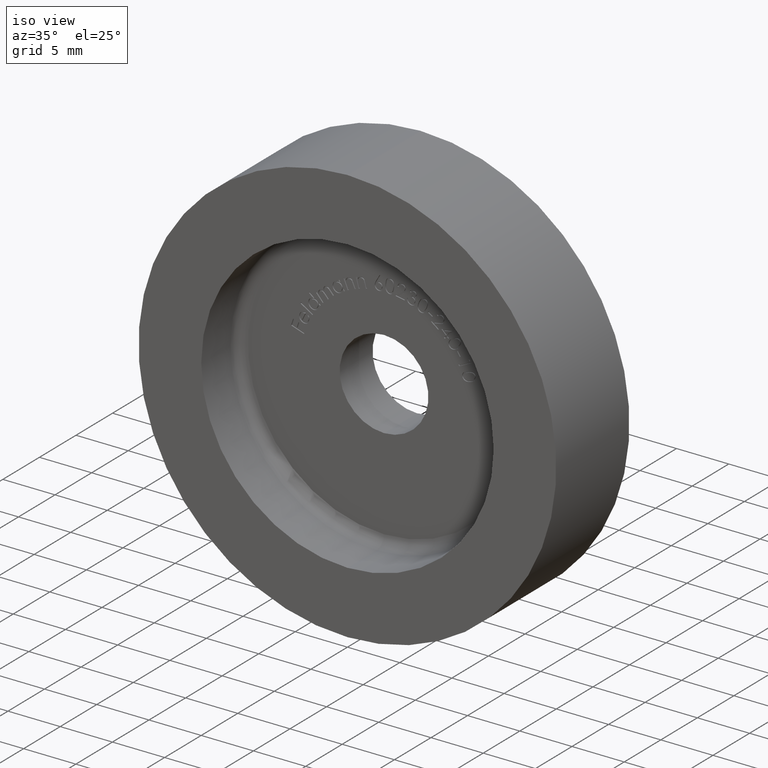
[diagram: clean part render]
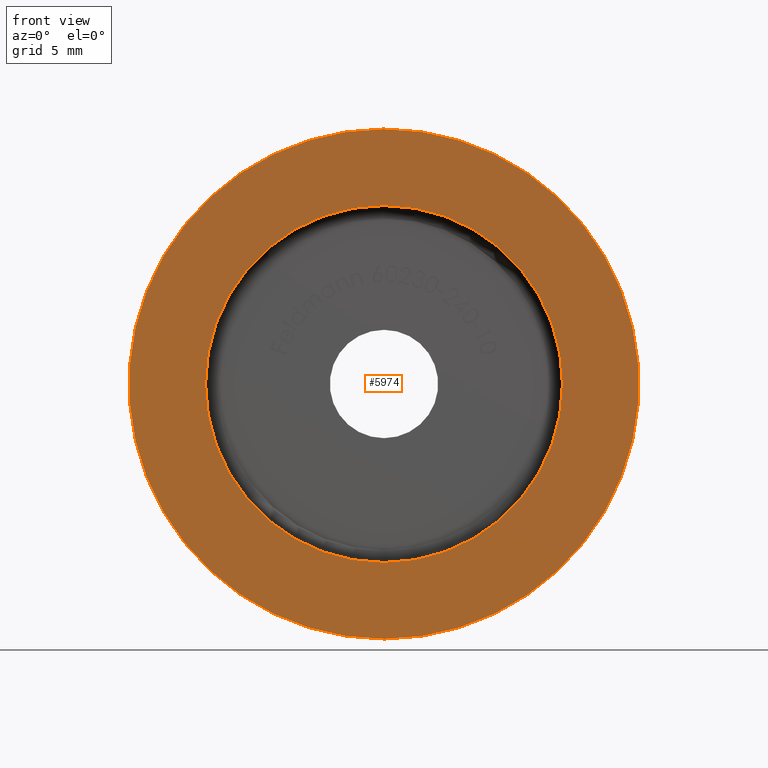
[diagram: tour spotlight — one face highlighted and labeled with its STEP entity id]
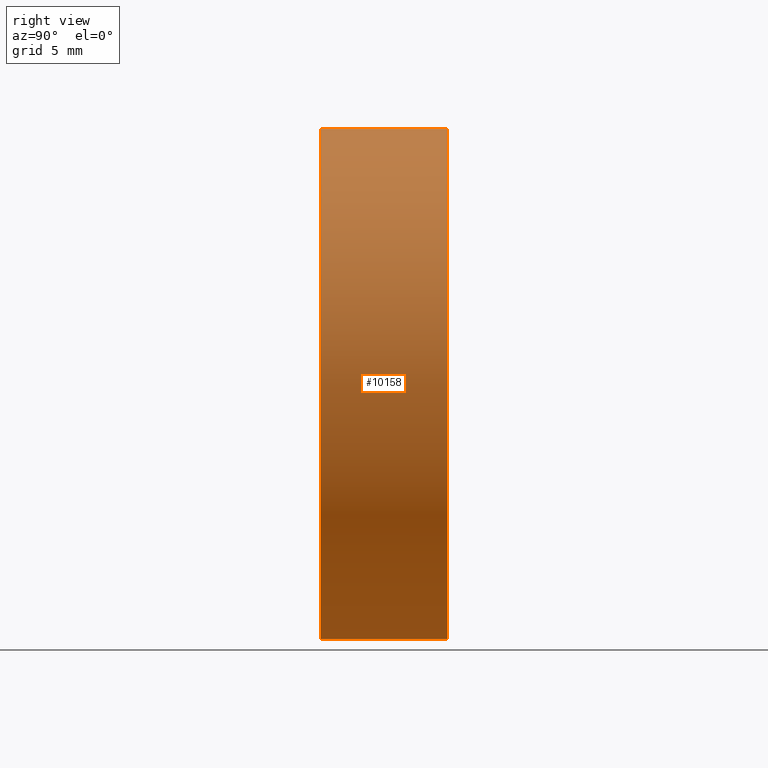
[diagram: tour spotlight — one face highlighted and labeled with its STEP entity id]
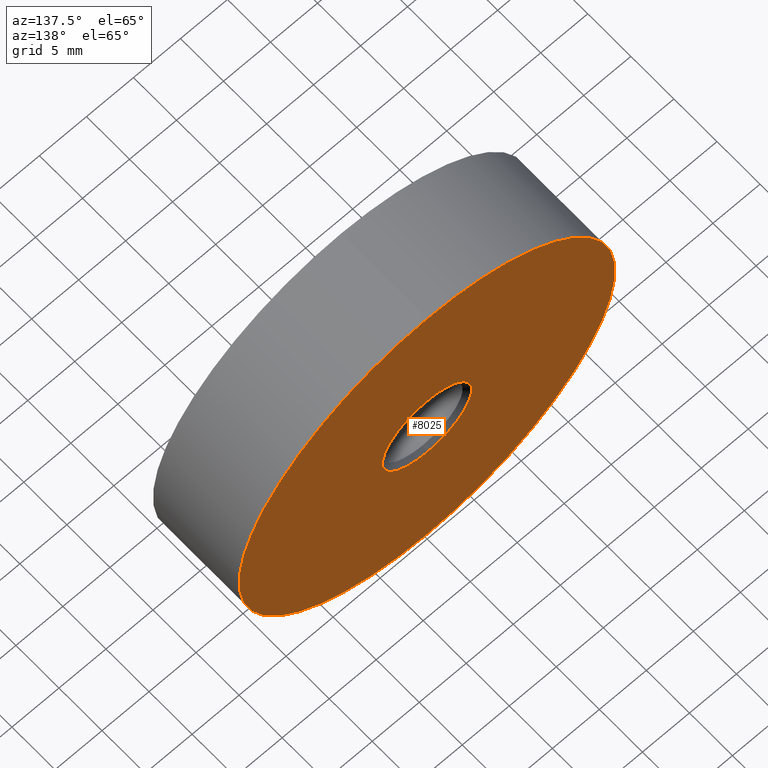
[diagram: tour spotlight — one face highlighted and labeled with its STEP entity id]
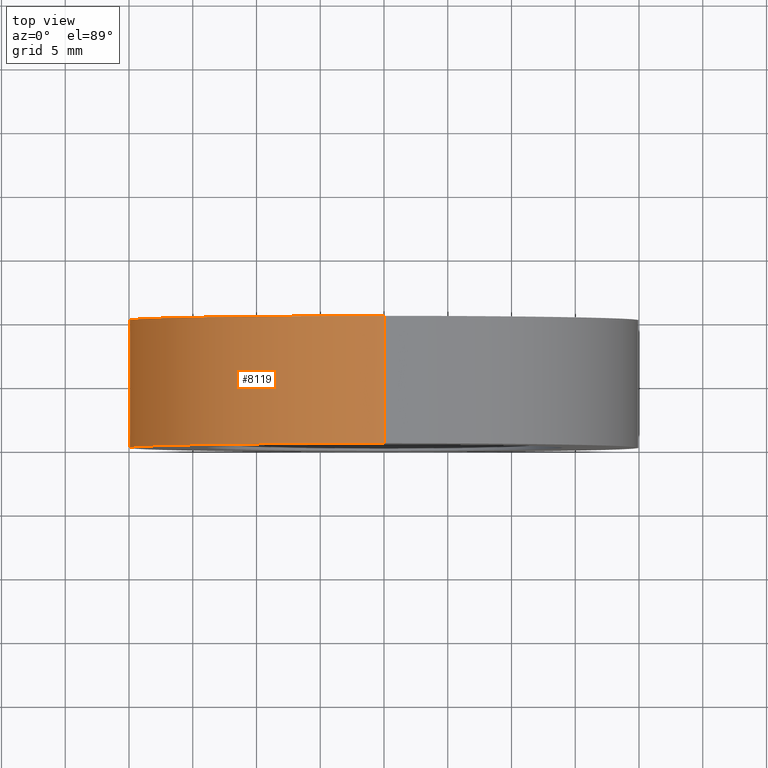
[diagram: tour spotlight — one face highlighted and labeled with its STEP entity id]
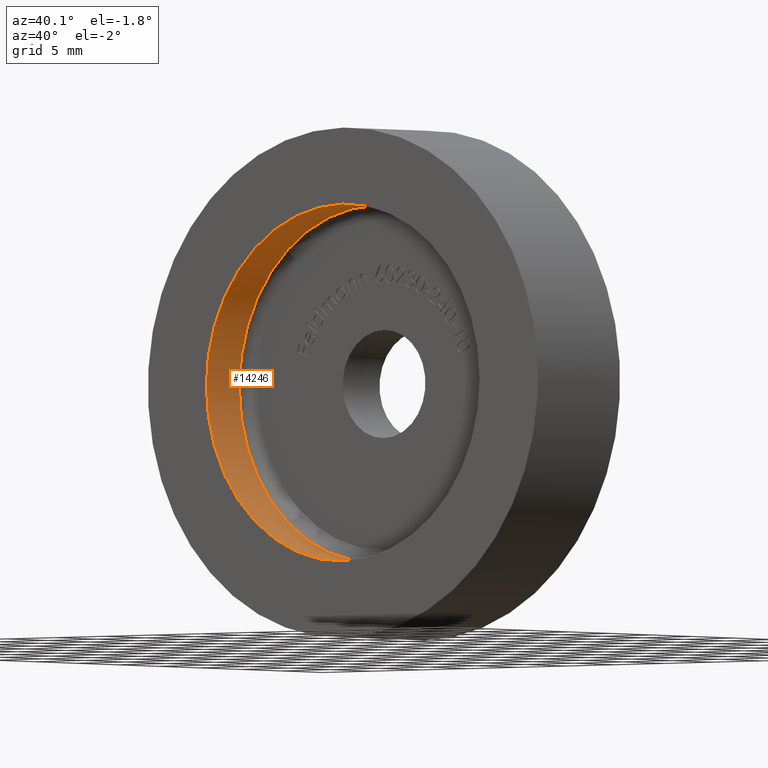
[diagram: tour spotlight — one face highlighted and labeled with its STEP entity id]
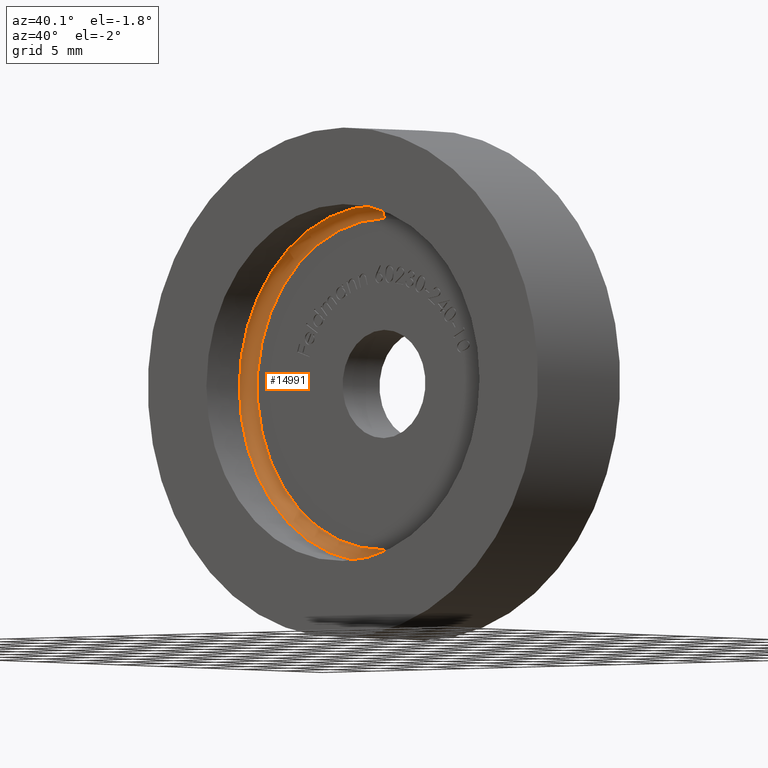
[diagram: tour spotlight — one face highlighted and labeled with its STEP entity id]
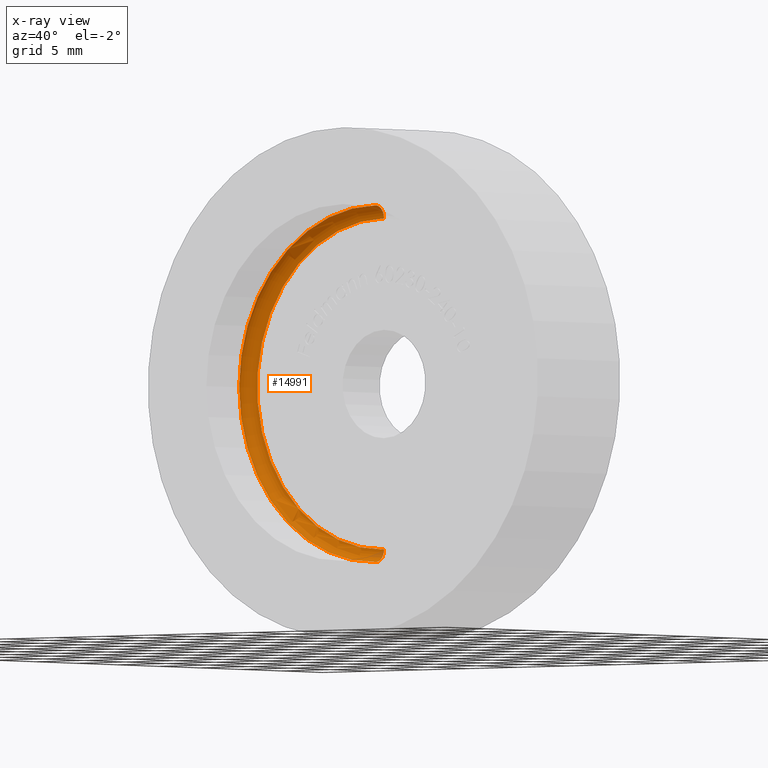
[diagram: x-ray of the same camera — body ghosted, this tour face saturated]
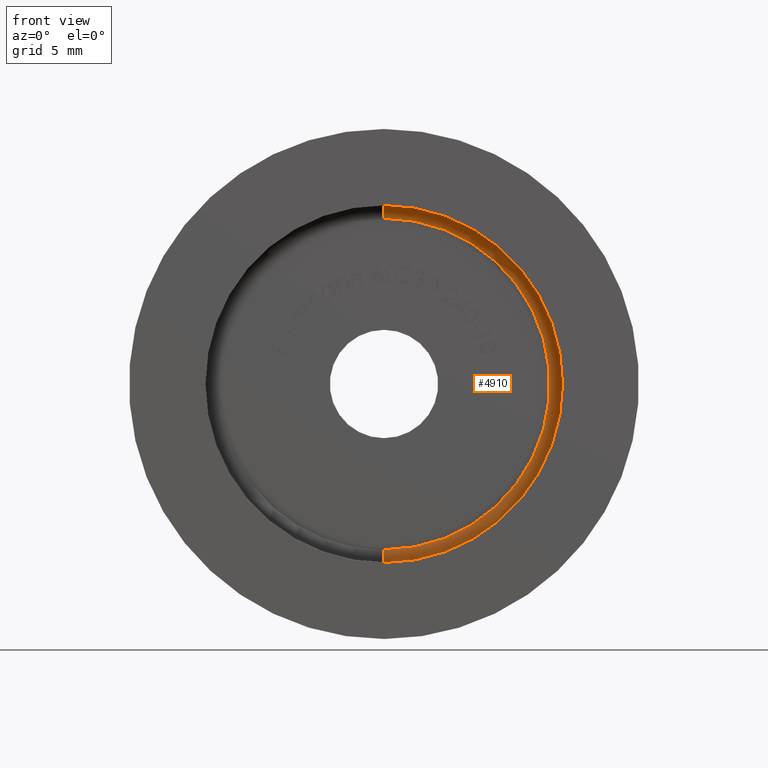
[diagram: tour spotlight — one face highlighted and labeled with its STEP entity id]
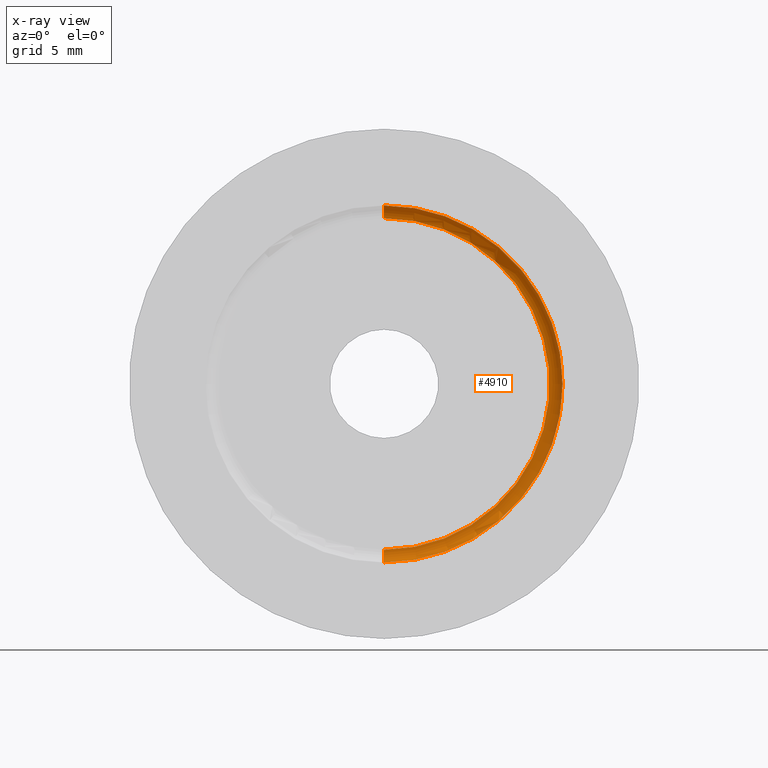
[diagram: x-ray of the same camera — body ghosted, this tour face saturated]
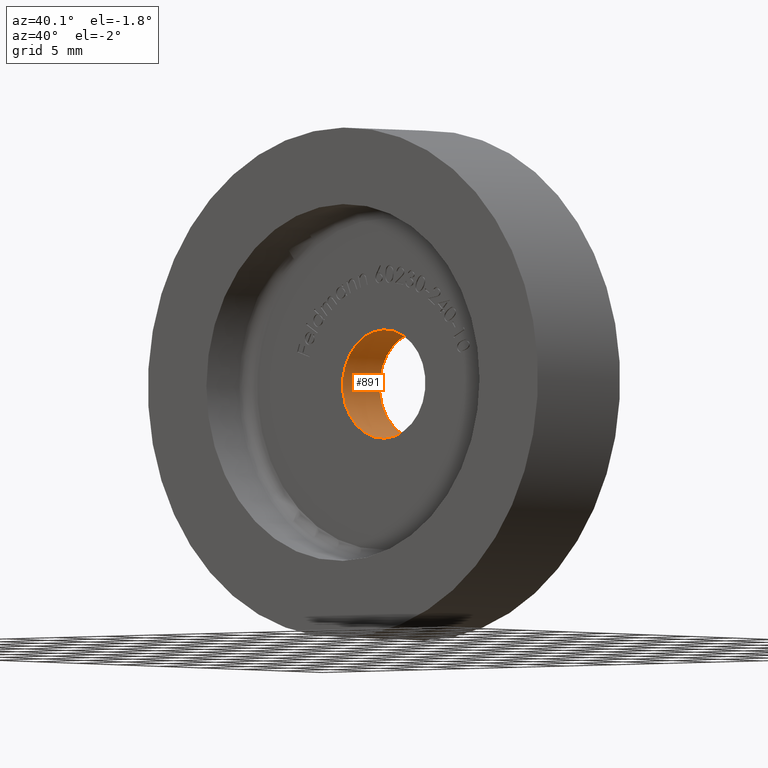
[diagram: tour spotlight — one face highlighted and labeled with its STEP entity id]
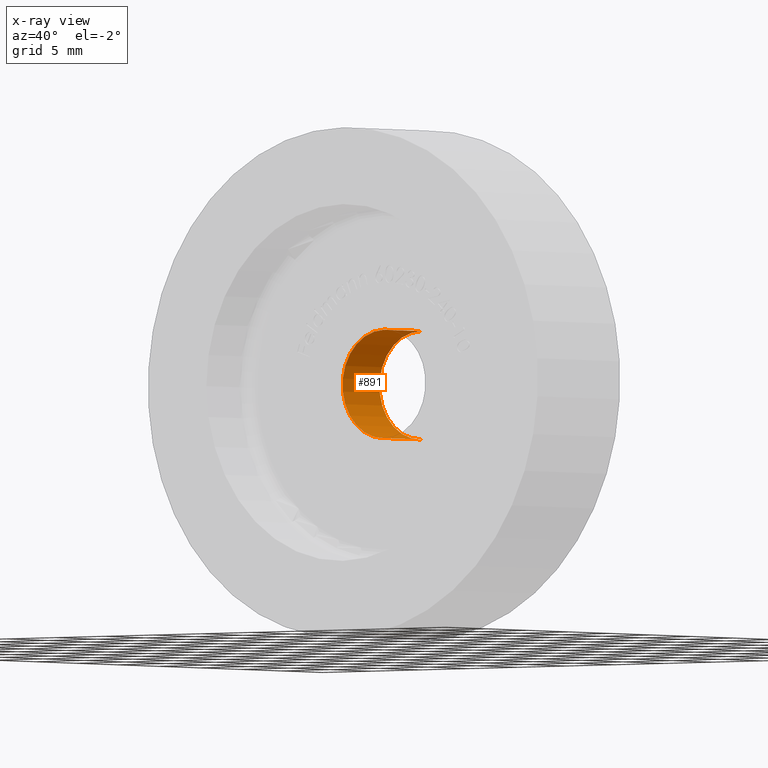
[diagram: x-ray of the same camera — body ghosted, this tour face saturated]
A machine part: a face-by-face anatomy tour. The part has 260 B-rep faces; the first image is the clean iso view, then the 8 largest visible faces are spotlighted one at a time (largest first), each with its STEP entity span.

Face 1 — front view, entity #5974. In plain terms, the highlighted planar face has unit normal (0, -1, 0).
Definition (entity closure, byte-faithful):
#480 = CARTESIAN_POINT ( 'NONE',  ( 0.000000000000000000, -1.734723475976807094E-15, 0.000000000000000000 ) ) ;
#525 = DIRECTION ( 'NONE',  ( 0.000000000000000000, 0.000000000000000000, 1.000000000000000000 ) ) ;
#1818 = CARTESIAN_POINT ( 'NONE',  ( 0.000000000000000000, 0.000000000000000000, -14.00000000000000000 ) ) ;
#2005 = VERTEX_POINT ( 'NONE', #15017 ) ;
#2177 = AXIS2_PLACEMENT_3D ( 'NONE', #3111, #12286, #14809 ) ;
#2670 = ORIENTED_EDGE ( 'NONE', *, *, #3071, .F. ) ;
#2947 = CIRCLE ( 'NONE', #8390, 14.00000000000000000 ) ;
#2968 = EDGE_LOOP ( 'NONE', ( #5273, #4473 ) ) ;
#3037 = CARTESIAN_POINT ( 'NONE',  ( 0.000000000000000000, 0.000000000000000000, 0.000000000000000000 ) ) ;
#3071 = EDGE_CURVE ( 'NONE', #13993, #6652, #12283, .T. ) ;
#3111 = CARTESIAN_POINT ( 'NONE',  ( -8.499999999999998224, -1.207637078764412262E-15, 0.000000000000000000 ) ) ;
#3781 = CARTESIAN_POINT ( 'NONE',  ( 0.000000000000000000, -1.734723475976807094E-15, 0.000000000000000000 ) ) ;
#3871 = DIRECTION ( 'NONE',  ( 0.000000000000000000, 0.000000000000000000, 1.000000000000000000 ) ) ;
#4065 = CARTESIAN_POINT ( 'NONE',  ( 1.714505518806294638E-15, 0.000000000000000000, 14.00000000000000000 ) ) ;
#4473 = ORIENTED_EDGE ( 'NONE', *, *, #10258, .F. ) ;
#4917 = EDGE_CURVE ( 'NONE', #6652, #13993, #2947, .T. ) ;
#4972 = FACE_OUTER_BOUND ( 'NONE', #2968, .T. ) ;
#5116 = DIRECTION ( 'NONE',  ( 0.000000000000000000, 0.000000000000000000, -1.000000000000000000 ) ) ;
#5273 = ORIENTED_EDGE ( 'NONE', *, *, #11755, .F. ) ;
#5974 = ADVANCED_FACE ( 'NONE', ( #10058, #4972 ), #13432, .T. ) ;
#6652 = VERTEX_POINT ( 'NONE', #4065 ) ;
#8203 = ORIENTED_EDGE ( 'NONE', *, *, #4917, .F. ) ;
#8365 = AXIS2_PLACEMENT_3D ( 'NONE', #3781, #9720, #3871 ) ;
#8390 = AXIS2_PLACEMENT_3D ( 'NONE', #3037, #12221, #12375 ) ;
#9203 = VERTEX_POINT ( 'NONE', #13954 ) ;
#9541 = AXIS2_PLACEMENT_3D ( 'NONE', #13219, #14385, #5116 ) ;
#9622 = AXIS2_PLACEMENT_3D ( 'NONE', #480, #9844, #525 ) ;
#9661 = CIRCLE ( 'NONE', #8365, 20.00000000000000000 ) ;
#9720 = DIRECTION ( 'NONE',  ( -0.000000000000000000, 1.000000000000000000, -0.000000000000000000 ) ) ;
#9844 = DIRECTION ( 'NONE',  ( -0.000000000000000000, 1.000000000000000000, -0.000000000000000000 ) ) ;
#10058 = FACE_BOUND ( 'NONE', #13573, .T. ) ;
#10258 = EDGE_CURVE ( 'NONE', #9203, #2005, #13149, .T. ) ;
#11755 = EDGE_CURVE ( 'NONE', #2005, #9203, #9661, .T. ) ;
#12221 = DIRECTION ( 'NONE',  ( 0.000000000000000000, -1.000000000000000000, 0.000000000000000000 ) ) ;
#12283 = CIRCLE ( 'NONE', #9541, 14.00000000000000000 ) ;
#12286 = DIRECTION ( 'NONE',  ( 0.000000000000000000, -1.000000000000000000, 0.000000000000000000 ) ) ;
#12375 = DIRECTION ( 'NONE',  ( 0.000000000000000000, 0.000000000000000000, -1.000000000000000000 ) ) ;
#13149 = CIRCLE ( 'NONE', #9622, 20.00000000000000000 ) ;
#13219 = CARTESIAN_POINT ( 'NONE',  ( 0.000000000000000000, 0.000000000000000000, 0.000000000000000000 ) ) ;
#13432 = PLANE ( 'NONE',  #2177 ) ;
#13573 = EDGE_LOOP ( 'NONE', ( #2670, #8203 ) ) ;
#13954 = CARTESIAN_POINT ( 'NONE',  ( 2.449293598294706513E-15, -1.734723475976807094E-15, -20.00000000000000000 ) ) ;
#13993 = VERTEX_POINT ( 'NONE', #1818 ) ;
#14385 = DIRECTION ( 'NONE',  ( 0.000000000000000000, -1.000000000000000000, 0.000000000000000000 ) ) ;
#14809 = DIRECTION ( 'NONE',  ( 0.000000000000000000, -0.000000000000000000, -1.000000000000000000 ) ) ;
#15017 = CARTESIAN_POINT ( 'NONE',  ( 0.000000000000000000, -1.734723475976807094E-15, 20.00000000000000000 ) ) ;

Face 2 — right view, entity #10158. In plain terms, the highlighted cylindrical surface (partial cylindrical patch) has radius 20 mm, axis along (-0, 1, -0).
Definition (entity closure, byte-faithful):
#14 = DIRECTION ( 'NONE',  ( 0.000000000000000000, 0.000000000000000000, 1.000000000000000000 ) ) ;
#319 = VERTEX_POINT ( 'NONE', #7921 ) ;
#2005 = VERTEX_POINT ( 'NONE', #15017 ) ;
#2459 = AXIS2_PLACEMENT_3D ( 'NONE', #8143, #7014, #14 ) ;
#2605 = EDGE_LOOP ( 'NONE', ( #9218, #12498, #3365, #3950 ) ) ;
#3365 = ORIENTED_EDGE ( 'NONE', *, *, #12206, .F. ) ;
#3781 = CARTESIAN_POINT ( 'NONE',  ( 0.000000000000000000, -1.734723475976807094E-15, 0.000000000000000000 ) ) ;
#3871 = DIRECTION ( 'NONE',  ( 0.000000000000000000, 0.000000000000000000, 1.000000000000000000 ) ) ;
#3950 = ORIENTED_EDGE ( 'NONE', *, *, #13123, .F. ) ;
#4327 = CARTESIAN_POINT ( 'NONE',  ( 2.449293598294706907E-15, 9.999999999999998224, -20.00000000000000355 ) ) ;
#4490 = CARTESIAN_POINT ( 'NONE',  ( 2.449293598294707302E-15, 9.999999999999998224, -20.00000000000000711 ) ) ;
#5840 = CIRCLE ( 'NONE', #11770, 20.00000000000000711 ) ;
#7014 = DIRECTION ( 'NONE',  ( -0.000000000000000000, 1.000000000000000000, -0.000000000000000000 ) ) ;
#7522 = DIRECTION ( 'NONE',  ( -0.000000000000000000, 1.000000000000000000, -0.000000000000000000 ) ) ;
#7921 = CARTESIAN_POINT ( 'NONE',  ( 0.000000000000000000, 9.999999999999998224, 20.00000000000000711 ) ) ;
#8143 = CARTESIAN_POINT ( 'NONE',  ( 0.000000000000000000, 9.999999999999998224, 0.000000000000000000 ) ) ;
#8155 = DIRECTION ( 'NONE',  ( 0.000000000000000000, 0.000000000000000000, 1.000000000000000000 ) ) ;
#8242 = EDGE_CURVE ( 'NONE', #9203, #9645, #14188, .T. ) ;
#8365 = AXIS2_PLACEMENT_3D ( 'NONE', #3781, #9720, #3871 ) ;
#8733 = VECTOR ( 'NONE', #7522, 1000.000000000000000 ) ;
#9203 = VERTEX_POINT ( 'NONE', #13954 ) ;
#9218 = ORIENTED_EDGE ( 'NONE', *, *, #11755, .T. ) ;
#9645 = VERTEX_POINT ( 'NONE', #4490 ) ;
#9661 = CIRCLE ( 'NONE', #8365, 20.00000000000000000 ) ;
#9720 = DIRECTION ( 'NONE',  ( -0.000000000000000000, 1.000000000000000000, -0.000000000000000000 ) ) ;
#9994 = LINE ( 'NONE', #13252, #8733 ) ;
#10158 = ADVANCED_FACE ( 'NONE', ( #14088 ), #11864, .T. ) ;
#11613 = DIRECTION ( 'NONE',  ( -0.000000000000000000, 1.000000000000000000, -0.000000000000000000 ) ) ;
#11755 = EDGE_CURVE ( 'NONE', #2005, #9203, #9661, .T. ) ;
#11770 = AXIS2_PLACEMENT_3D ( 'NONE', #15044, #11613, #8155 ) ;
#11864 = CYLINDRICAL_SURFACE ( 'NONE', #2459, 20.00000000000000355 ) ;
#12136 = VECTOR ( 'NONE', #14723, 1000.000000000000000 ) ;
#12206 = EDGE_CURVE ( 'NONE', #319, #9645, #5840, .T. ) ;
#12498 = ORIENTED_EDGE ( 'NONE', *, *, #8242, .T. ) ;
#13123 = EDGE_CURVE ( 'NONE', #2005, #319, #9994, .T. ) ;
#13252 = CARTESIAN_POINT ( 'NONE',  ( 0.000000000000000000, 9.999999999999998224, 20.00000000000000355 ) ) ;
#13954 = CARTESIAN_POINT ( 'NONE',  ( 2.449293598294706513E-15, -1.734723475976807094E-15, -20.00000000000000000 ) ) ;
#14088 = FACE_OUTER_BOUND ( 'NONE', #2605, .T. ) ;
#14188 = LINE ( 'NONE', #4327, #12136 ) ;
#14723 = DIRECTION ( 'NONE',  ( -0.000000000000000000, 1.000000000000000000, -0.000000000000000000 ) ) ;
#15017 = CARTESIAN_POINT ( 'NONE',  ( 0.000000000000000000, -1.734723475976807094E-15, 20.00000000000000000 ) ) ;
#15044 = CARTESIAN_POINT ( 'NONE',  ( 0.000000000000000000, 9.999999999999998224, 0.000000000000000000 ) ) ;

Face 3 — auxiliary view, entity #8025. In plain terms, the highlighted planar face has unit normal (-0, 1, 0).
Definition (entity closure, byte-faithful):
#319 = VERTEX_POINT ( 'NONE', #7921 ) ;
#1289 = PLANE ( 'NONE',  #6371 ) ;
#1375 = ORIENTED_EDGE ( 'NONE', *, *, #12206, .T. ) ;
#2326 = EDGE_LOOP ( 'NONE', ( #8450, #6466 ) ) ;
#2534 = CARTESIAN_POINT ( 'NONE',  ( -20.00000000000000711, 9.999999999999998224, 0.000000000000000000 ) ) ;
#2624 = CARTESIAN_POINT ( 'NONE',  ( 0.000000000000000000, 9.999999999999998224, 0.000000000000000000 ) ) ;
#3348 = CARTESIAN_POINT ( 'NONE',  ( 0.000000000000000000, 9.999999999999998224, 0.000000000000000000 ) ) ;
#3355 = CIRCLE ( 'NONE', #10234, 20.00000000000000711 ) ;
#3724 = DIRECTION ( 'NONE',  ( 0.000000000000000000, 0.000000000000000000, 1.000000000000000000 ) ) ;
#3806 = EDGE_CURVE ( 'NONE', #9645, #319, #3355, .T. ) ;
#4109 = ORIENTED_EDGE ( 'NONE', *, *, #3806, .T. ) ;
#4332 = DIRECTION ( 'NONE',  ( 0.000000000000000000, 0.000000000000000000, 1.000000000000000000 ) ) ;
#4490 = CARTESIAN_POINT ( 'NONE',  ( 2.449293598294707302E-15, 9.999999999999998224, -20.00000000000000711 ) ) ;
#5284 = EDGE_CURVE ( 'NONE', #10207, #14298, #12440, .T. ) ;
#5840 = CIRCLE ( 'NONE', #11770, 20.00000000000000711 ) ;
#6371 = AXIS2_PLACEMENT_3D ( 'NONE', #2534, #8371, #3724 ) ;
#6375 = CIRCLE ( 'NONE', #8848, 4.750000000000002665 ) ;
#6466 = ORIENTED_EDGE ( 'NONE', *, *, #10654, .F. ) ;
#7306 = DIRECTION ( 'NONE',  ( 0.000000000000000000, 0.000000000000000000, 1.000000000000000000 ) ) ;
#7344 = CARTESIAN_POINT ( 'NONE',  ( 0.000000000000000000, 9.999999999999998224, 4.750000000000002665 ) ) ;
#7921 = CARTESIAN_POINT ( 'NONE',  ( 0.000000000000000000, 9.999999999999998224, 20.00000000000000711 ) ) ;
#7956 = EDGE_LOOP ( 'NONE', ( #1375, #4109 ) ) ;
#8025 = ADVANCED_FACE ( 'NONE', ( #9676, #13335 ), #1289, .T. ) ;
#8155 = DIRECTION ( 'NONE',  ( 0.000000000000000000, 0.000000000000000000, 1.000000000000000000 ) ) ;
#8371 = DIRECTION ( 'NONE',  ( -0.000000000000000000, 1.000000000000000000, 0.000000000000000000 ) ) ;
#8373 = DIRECTION ( 'NONE',  ( -0.000000000000000000, 1.000000000000000000, -0.000000000000000000 ) ) ;
#8450 = ORIENTED_EDGE ( 'NONE', *, *, #5284, .F. ) ;
#8848 = AXIS2_PLACEMENT_3D ( 'NONE', #14996, #14885, #4332 ) ;
#9171 = AXIS2_PLACEMENT_3D ( 'NONE', #3348, #14223, #7306 ) ;
#9645 = VERTEX_POINT ( 'NONE', #4490 ) ;
#9676 = FACE_OUTER_BOUND ( 'NONE', #7956, .T. ) ;
#10207 = VERTEX_POINT ( 'NONE', #7344 ) ;
#10234 = AXIS2_PLACEMENT_3D ( 'NONE', #2624, #8373, #10746 ) ;
#10654 = EDGE_CURVE ( 'NONE', #14298, #10207, #6375, .T. ) ;
#10746 = DIRECTION ( 'NONE',  ( 0.000000000000000000, 0.000000000000000000, 1.000000000000000000 ) ) ;
#11613 = DIRECTION ( 'NONE',  ( -0.000000000000000000, 1.000000000000000000, -0.000000000000000000 ) ) ;
#11770 = AXIS2_PLACEMENT_3D ( 'NONE', #15044, #11613, #8155 ) ;
#12206 = EDGE_CURVE ( 'NONE', #319, #9645, #5840, .T. ) ;
#12228 = CARTESIAN_POINT ( 'NONE',  ( 5.817072295949931370E-16, 9.999999999999998224, -4.750000000000002665 ) ) ;
#12440 = CIRCLE ( 'NONE', #9171, 4.750000000000002665 ) ;
#13335 = FACE_BOUND ( 'NONE', #2326, .T. ) ;
#14223 = DIRECTION ( 'NONE',  ( -0.000000000000000000, 1.000000000000000000, -0.000000000000000000 ) ) ;
#14298 = VERTEX_POINT ( 'NONE', #12228 ) ;
#14885 = DIRECTION ( 'NONE',  ( -0.000000000000000000, 1.000000000000000000, -0.000000000000000000 ) ) ;
#14996 = CARTESIAN_POINT ( 'NONE',  ( 0.000000000000000000, 9.999999999999998224, 0.000000000000000000 ) ) ;
#15044 = CARTESIAN_POINT ( 'NONE',  ( 0.000000000000000000, 9.999999999999998224, 0.000000000000000000 ) ) ;

Face 4 — top view, entity #8119. In plain terms, the highlighted cylindrical surface (partial cylindrical patch) has radius 20 mm, axis along (-0, 1, -0).
Definition (entity closure, byte-faithful):
#319 = VERTEX_POINT ( 'NONE', #7921 ) ;
#480 = CARTESIAN_POINT ( 'NONE',  ( 0.000000000000000000, -1.734723475976807094E-15, 0.000000000000000000 ) ) ;
#525 = DIRECTION ( 'NONE',  ( 0.000000000000000000, 0.000000000000000000, 1.000000000000000000 ) ) ;
#939 = ORIENTED_EDGE ( 'NONE', *, *, #3806, .F. ) ;
#1523 = DIRECTION ( 'NONE',  ( -0.000000000000000000, 1.000000000000000000, -0.000000000000000000 ) ) ;
#1676 = CARTESIAN_POINT ( 'NONE',  ( 0.000000000000000000, 9.999999999999998224, 0.000000000000000000 ) ) ;
#2005 = VERTEX_POINT ( 'NONE', #15017 ) ;
#2624 = CARTESIAN_POINT ( 'NONE',  ( 0.000000000000000000, 9.999999999999998224, 0.000000000000000000 ) ) ;
#2824 = DIRECTION ( 'NONE',  ( 0.000000000000000000, 0.000000000000000000, 1.000000000000000000 ) ) ;
#2943 = ORIENTED_EDGE ( 'NONE', *, *, #8242, .F. ) ;
#3355 = CIRCLE ( 'NONE', #10234, 20.00000000000000711 ) ;
#3560 = ORIENTED_EDGE ( 'NONE', *, *, #10258, .T. ) ;
#3806 = EDGE_CURVE ( 'NONE', #9645, #319, #3355, .T. ) ;
#4327 = CARTESIAN_POINT ( 'NONE',  ( 2.449293598294706907E-15, 9.999999999999998224, -20.00000000000000355 ) ) ;
#4490 = CARTESIAN_POINT ( 'NONE',  ( 2.449293598294707302E-15, 9.999999999999998224, -20.00000000000000711 ) ) ;
#5222 = FACE_OUTER_BOUND ( 'NONE', #8514, .T. ) ;
#5600 = CYLINDRICAL_SURFACE ( 'NONE', #5706, 20.00000000000000355 ) ;
#5706 = AXIS2_PLACEMENT_3D ( 'NONE', #1676, #1523, #2824 ) ;
#7522 = DIRECTION ( 'NONE',  ( -0.000000000000000000, 1.000000000000000000, -0.000000000000000000 ) ) ;
#7921 = CARTESIAN_POINT ( 'NONE',  ( 0.000000000000000000, 9.999999999999998224, 20.00000000000000711 ) ) ;
#8119 = ADVANCED_FACE ( 'NONE', ( #5222 ), #5600, .T. ) ;
#8242 = EDGE_CURVE ( 'NONE', #9203, #9645, #14188, .T. ) ;
#8373 = DIRECTION ( 'NONE',  ( -0.000000000000000000, 1.000000000000000000, -0.000000000000000000 ) ) ;
#8514 = EDGE_LOOP ( 'NONE', ( #2943, #3560, #13693, #939 ) ) ;
#8733 = VECTOR ( 'NONE', #7522, 1000.000000000000000 ) ;
#9203 = VERTEX_POINT ( 'NONE', #13954 ) ;
#9622 = AXIS2_PLACEMENT_3D ( 'NONE', #480, #9844, #525 ) ;
#9645 = VERTEX_POINT ( 'NONE', #4490 ) ;
#9844 = DIRECTION ( 'NONE',  ( -0.000000000000000000, 1.000000000000000000, -0.000000000000000000 ) ) ;
#9994 = LINE ( 'NONE', #13252, #8733 ) ;
#10234 = AXIS2_PLACEMENT_3D ( 'NONE', #2624, #8373, #10746 ) ;
#10258 = EDGE_CURVE ( 'NONE', #9203, #2005, #13149, .T. ) ;
#10746 = DIRECTION ( 'NONE',  ( 0.000000000000000000, 0.000000000000000000, 1.000000000000000000 ) ) ;
#12136 = VECTOR ( 'NONE', #14723, 1000.000000000000000 ) ;
#13123 = EDGE_CURVE ( 'NONE', #2005, #319, #9994, .T. ) ;
#13149 = CIRCLE ( 'NONE', #9622, 20.00000000000000000 ) ;
#13252 = CARTESIAN_POINT ( 'NONE',  ( 0.000000000000000000, 9.999999999999998224, 20.00000000000000355 ) ) ;
#13693 = ORIENTED_EDGE ( 'NONE', *, *, #13123, .T. ) ;
#13954 = CARTESIAN_POINT ( 'NONE',  ( 2.449293598294706513E-15, -1.734723475976807094E-15, -20.00000000000000000 ) ) ;
#14188 = LINE ( 'NONE', #4327, #12136 ) ;
#14723 = DIRECTION ( 'NONE',  ( -0.000000000000000000, 1.000000000000000000, -0.000000000000000000 ) ) ;
#15017 = CARTESIAN_POINT ( 'NONE',  ( 0.000000000000000000, -1.734723475976807094E-15, 20.00000000000000000 ) ) ;

Face 5 — auxiliary view, entity #14246. In plain terms, the highlighted cylindrical surface (partial cylindrical patch) has radius 14 mm, axis along (-0, -1, -0).
Definition (entity closure, byte-faithful):
#99 = EDGE_CURVE ( 'NONE', #10719, #13993, #795, .T. ) ;
#534 = DIRECTION ( 'NONE',  ( -0.000000000000000000, -1.000000000000000000, -0.000000000000000000 ) ) ;
#567 = AXIS2_PLACEMENT_3D ( 'NONE', #11162, #13500, #7559 ) ;
#795 = LINE ( 'NONE', #10957, #6196 ) ;
#856 = LINE ( 'NONE', #2898, #14230 ) ;
#1693 = CARTESIAN_POINT ( 'NONE',  ( 0.000000000000000000, 49.59797974644666141, 0.000000000000000000 ) ) ;
#1818 = CARTESIAN_POINT ( 'NONE',  ( 0.000000000000000000, 0.000000000000000000, -14.00000000000000000 ) ) ;
#1907 = ORIENTED_EDGE ( 'NONE', *, *, #14288, .T. ) ;
#2898 = CARTESIAN_POINT ( 'NONE',  ( 1.714505518806294638E-15, 49.59797974644666141, 14.00000000000000000 ) ) ;
#2947 = CIRCLE ( 'NONE', #8390, 14.00000000000000000 ) ;
#3037 = CARTESIAN_POINT ( 'NONE',  ( 0.000000000000000000, 0.000000000000000000, 0.000000000000000000 ) ) ;
#3862 = AXIS2_PLACEMENT_3D ( 'NONE', #1693, #8673, #9885 ) ;
#4065 = CARTESIAN_POINT ( 'NONE',  ( 1.714505518806294638E-15, 0.000000000000000000, 14.00000000000000000 ) ) ;
#4917 = EDGE_CURVE ( 'NONE', #6652, #13993, #2947, .T. ) ;
#6169 = CYLINDRICAL_SURFACE ( 'NONE', #3862, 14.00000000000000000 ) ;
#6196 = VECTOR ( 'NONE', #534, 1000.000000000000000 ) ;
#6652 = VERTEX_POINT ( 'NONE', #4065 ) ;
#6726 = FACE_OUTER_BOUND ( 'NONE', #6973, .T. ) ;
#6973 = EDGE_LOOP ( 'NONE', ( #9356, #1907, #10430, #12506 ) ) ;
#7227 = VERTEX_POINT ( 'NONE', #14115 ) ;
#7559 = DIRECTION ( 'NONE',  ( 0.000000000000000000, 0.000000000000000000, 1.000000000000000000 ) ) ;
#7637 = CIRCLE ( 'NONE', #567, 14.00000000000000000 ) ;
#8390 = AXIS2_PLACEMENT_3D ( 'NONE', #3037, #12221, #12375 ) ;
#8673 = DIRECTION ( 'NONE',  ( -0.000000000000000000, -1.000000000000000000, -0.000000000000000000 ) ) ;
#9356 = ORIENTED_EDGE ( 'NONE', *, *, #12396, .T. ) ;
#9885 = DIRECTION ( 'NONE',  ( 0.000000000000000000, 0.000000000000000000, -1.000000000000000000 ) ) ;
#10430 = ORIENTED_EDGE ( 'NONE', *, *, #4917, .T. ) ;
#10719 = VERTEX_POINT ( 'NONE', #13674 ) ;
#10957 = CARTESIAN_POINT ( 'NONE',  ( 0.000000000000000000, 49.59797974644666141, -14.00000000000000000 ) ) ;
#11162 = CARTESIAN_POINT ( 'NONE',  ( 0.000000000000000000, 3.999999999999996447, 0.000000000000000000 ) ) ;
#12221 = DIRECTION ( 'NONE',  ( 0.000000000000000000, -1.000000000000000000, 0.000000000000000000 ) ) ;
#12375 = DIRECTION ( 'NONE',  ( 0.000000000000000000, 0.000000000000000000, -1.000000000000000000 ) ) ;
#12396 = EDGE_CURVE ( 'NONE', #10719, #7227, #7637, .T. ) ;
#12506 = ORIENTED_EDGE ( 'NONE', *, *, #99, .F. ) ;
#13473 = DIRECTION ( 'NONE',  ( -0.000000000000000000, -1.000000000000000000, -0.000000000000000000 ) ) ;
#13500 = DIRECTION ( 'NONE',  ( -0.000000000000000000, 1.000000000000000000, -0.000000000000000000 ) ) ;
#13674 = CARTESIAN_POINT ( 'NONE',  ( 0.000000000000000000, 3.999999999999996447, -14.00000000000000000 ) ) ;
#13993 = VERTEX_POINT ( 'NONE', #1818 ) ;
#14115 = CARTESIAN_POINT ( 'NONE',  ( 1.714505518806294638E-15, 3.999999999999996447, 14.00000000000000000 ) ) ;
#14230 = VECTOR ( 'NONE', #13473, 1000.000000000000000 ) ;
#14246 = ADVANCED_FACE ( 'NONE', ( #6726 ), #6169, .F. ) ;
#14288 = EDGE_CURVE ( 'NONE', #7227, #6652, #856, .T. ) ;

Face 6 — auxiliary view, entity #14991. An x-ray twin of the same camera follows (body ghosted, this face saturated) — the face is partly hidden behind the body. In plain terms, the highlighted toroidal blend (fillet) surface has major radius 13 mm and minor (blend) radius 1 mm.
Definition (entity closure, byte-faithful):
#305 = CARTESIAN_POINT ( 'NONE',  ( 0.000000000000000000, 3.999999999999996447, 0.000000000000000000 ) ) ;
#316 = DIRECTION ( 'NONE',  ( -1.000000000000000000, 0.000000000000000000, 0.000000000000000000 ) ) ;
#351 = DIRECTION ( 'NONE',  ( 1.000000000000000000, 0.000000000000000000, 1.224646799147353207E-16 ) ) ;
#567 = AXIS2_PLACEMENT_3D ( 'NONE', #11162, #13500, #7559 ) ;
#660 = CARTESIAN_POINT ( 'NONE',  ( 1.592040838891559293E-15, 3.999999999999996447, -13.00000000000000178 ) ) ;
#2613 = DIRECTION ( 'NONE',  ( -0.000000000000000000, 1.000000000000000000, -0.000000000000000000 ) ) ;
#3322 = DIRECTION ( 'NONE',  ( 0.000000000000000000, -1.000000000000000000, 0.000000000000000000 ) ) ;
#3636 = EDGE_CURVE ( 'NONE', #5247, #6641, #12270, .T. ) ;
#3826 = EDGE_CURVE ( 'NONE', #7227, #5247, #14484, .T. ) ;
#4350 = CARTESIAN_POINT ( 'NONE',  ( 0.000000000000000000, 4.999999999999998224, 0.000000000000000000 ) ) ;
#4908 = CARTESIAN_POINT ( 'NONE',  ( 0.000000000000000000, 3.999999999999996447, 13.00000000000000178 ) ) ;
#4951 = AXIS2_PLACEMENT_3D ( 'NONE', #660, #351, #5387 ) ;
#5247 = VERTEX_POINT ( 'NONE', #9237 ) ;
#5387 = DIRECTION ( 'NONE',  ( 1.224646799147351482E-16, 0.000000000000000000, -1.000000000000000000 ) ) ;
#5799 = AXIS2_PLACEMENT_3D ( 'NONE', #305, #2613, #8544 ) ;
#6641 = VERTEX_POINT ( 'NONE', #10639 ) ;
#7227 = VERTEX_POINT ( 'NONE', #14115 ) ;
#7373 = DIRECTION ( 'NONE',  ( 0.000000000000000000, 0.000000000000000000, 1.000000000000000000 ) ) ;
#7559 = DIRECTION ( 'NONE',  ( 0.000000000000000000, 0.000000000000000000, 1.000000000000000000 ) ) ;
#7637 = CIRCLE ( 'NONE', #567, 14.00000000000000000 ) ;
#8544 = DIRECTION ( 'NONE',  ( 0.000000000000000000, 0.000000000000000000, 1.000000000000000000 ) ) ;
#8898 = FACE_OUTER_BOUND ( 'NONE', #11224, .T. ) ;
#9237 = CARTESIAN_POINT ( 'NONE',  ( 0.000000000000000000, 4.999999999999998224, 13.00000000000000178 ) ) ;
#9590 = ORIENTED_EDGE ( 'NONE', *, *, #11436, .T. ) ;
#10448 = ORIENTED_EDGE ( 'NONE', *, *, #3636, .F. ) ;
#10507 = AXIS2_PLACEMENT_3D ( 'NONE', #4350, #3322, #14959 ) ;
#10639 = CARTESIAN_POINT ( 'NONE',  ( 1.653273178848927064E-15, 4.999999999999998224, -13.00000000000000178 ) ) ;
#10719 = VERTEX_POINT ( 'NONE', #13674 ) ;
#11162 = CARTESIAN_POINT ( 'NONE',  ( 0.000000000000000000, 3.999999999999996447, 0.000000000000000000 ) ) ;
#11224 = EDGE_LOOP ( 'NONE', ( #12676, #9590, #10448, #13658 ) ) ;
#11436 = EDGE_CURVE ( 'NONE', #10719, #6641, #13317, .T. ) ;
#12270 = CIRCLE ( 'NONE', #10507, 13.00000000000000178 ) ;
#12396 = EDGE_CURVE ( 'NONE', #10719, #7227, #7637, .T. ) ;
#12676 = ORIENTED_EDGE ( 'NONE', *, *, #12396, .F. ) ;
#12920 = TOROIDAL_SURFACE ( 'NONE', #5799, 13.00000000000000178, 1.000000000000000000 ) ;
#13317 = CIRCLE ( 'NONE', #4951, 1.000000000000000888 ) ;
#13358 = AXIS2_PLACEMENT_3D ( 'NONE', #4908, #316, #7373 ) ;
#13500 = DIRECTION ( 'NONE',  ( -0.000000000000000000, 1.000000000000000000, -0.000000000000000000 ) ) ;
#13658 = ORIENTED_EDGE ( 'NONE', *, *, #3826, .F. ) ;
#13674 = CARTESIAN_POINT ( 'NONE',  ( 0.000000000000000000, 3.999999999999996447, -14.00000000000000000 ) ) ;
#14115 = CARTESIAN_POINT ( 'NONE',  ( 1.714505518806294638E-15, 3.999999999999996447, 14.00000000000000000 ) ) ;
#14484 = CIRCLE ( 'NONE', #13358, 1.000000000000000888 ) ;
#14959 = DIRECTION ( 'NONE',  ( 0.000000000000000000, 0.000000000000000000, 1.000000000000000000 ) ) ;
#14991 = ADVANCED_FACE ( 'NONE', ( #8898 ), #12920, .F. ) ;

Face 7 — front view, entity #4910. An x-ray twin of the same camera follows (body ghosted, this face saturated) — the face is partly hidden behind the body. In plain terms, the highlighted toroidal blend (fillet) surface has major radius 13 mm and minor (blend) radius 1 mm.
Definition (entity closure, byte-faithful):
#316 = DIRECTION ( 'NONE',  ( -1.000000000000000000, 0.000000000000000000, 0.000000000000000000 ) ) ;
#351 = DIRECTION ( 'NONE',  ( 1.000000000000000000, 0.000000000000000000, 1.224646799147353207E-16 ) ) ;
#454 = EDGE_CURVE ( 'NONE', #7227, #10719, #3291, .T. ) ;
#660 = CARTESIAN_POINT ( 'NONE',  ( 1.592040838891559293E-15, 3.999999999999996447, -13.00000000000000178 ) ) ;
#1123 = DIRECTION ( 'NONE',  ( 0.000000000000000000, 0.000000000000000000, 1.000000000000000000 ) ) ;
#2810 = ORIENTED_EDGE ( 'NONE', *, *, #9746, .F. ) ;
#3291 = CIRCLE ( 'NONE', #13851, 14.00000000000000000 ) ;
#3826 = EDGE_CURVE ( 'NONE', #7227, #5247, #14484, .T. ) ;
#3974 = DIRECTION ( 'NONE',  ( -0.000000000000000000, 1.000000000000000000, -0.000000000000000000 ) ) ;
#4739 = ORIENTED_EDGE ( 'NONE', *, *, #11436, .F. ) ;
#4872 = DIRECTION ( 'NONE',  ( -0.000000000000000000, 1.000000000000000000, -0.000000000000000000 ) ) ;
#4908 = CARTESIAN_POINT ( 'NONE',  ( 0.000000000000000000, 3.999999999999996447, 13.00000000000000178 ) ) ;
#4910 = ADVANCED_FACE ( 'NONE', ( #5537 ), #13020, .F. ) ;
#4951 = AXIS2_PLACEMENT_3D ( 'NONE', #660, #351, #5387 ) ;
#4970 = AXIS2_PLACEMENT_3D ( 'NONE', #13262, #3974, #12061 ) ;
#5247 = VERTEX_POINT ( 'NONE', #9237 ) ;
#5387 = DIRECTION ( 'NONE',  ( 1.224646799147351482E-16, 0.000000000000000000, -1.000000000000000000 ) ) ;
#5537 = FACE_OUTER_BOUND ( 'NONE', #8289, .T. ) ;
#6641 = VERTEX_POINT ( 'NONE', #10639 ) ;
#6667 = AXIS2_PLACEMENT_3D ( 'NONE', #9379, #13936, #1123 ) ;
#7227 = VERTEX_POINT ( 'NONE', #14115 ) ;
#7305 = CIRCLE ( 'NONE', #6667, 13.00000000000000178 ) ;
#7373 = DIRECTION ( 'NONE',  ( 0.000000000000000000, 0.000000000000000000, 1.000000000000000000 ) ) ;
#8289 = EDGE_LOOP ( 'NONE', ( #4739, #9809, #12084, #2810 ) ) ;
#9237 = CARTESIAN_POINT ( 'NONE',  ( 0.000000000000000000, 4.999999999999998224, 13.00000000000000178 ) ) ;
#9379 = CARTESIAN_POINT ( 'NONE',  ( 0.000000000000000000, 4.999999999999998224, 0.000000000000000000 ) ) ;
#9510 = CARTESIAN_POINT ( 'NONE',  ( 0.000000000000000000, 3.999999999999996447, 0.000000000000000000 ) ) ;
#9746 = EDGE_CURVE ( 'NONE', #6641, #5247, #7305, .T. ) ;
#9809 = ORIENTED_EDGE ( 'NONE', *, *, #454, .F. ) ;
#10639 = CARTESIAN_POINT ( 'NONE',  ( 1.653273178848927064E-15, 4.999999999999998224, -13.00000000000000178 ) ) ;
#10719 = VERTEX_POINT ( 'NONE', #13674 ) ;
#11436 = EDGE_CURVE ( 'NONE', #10719, #6641, #13317, .T. ) ;
#12061 = DIRECTION ( 'NONE',  ( 0.000000000000000000, 0.000000000000000000, 1.000000000000000000 ) ) ;
#12084 = ORIENTED_EDGE ( 'NONE', *, *, #3826, .T. ) ;
#13020 = TOROIDAL_SURFACE ( 'NONE', #4970, 13.00000000000000178, 1.000000000000000000 ) ;
#13262 = CARTESIAN_POINT ( 'NONE',  ( 0.000000000000000000, 3.999999999999996447, 0.000000000000000000 ) ) ;
#13317 = CIRCLE ( 'NONE', #4951, 1.000000000000000888 ) ;
#13358 = AXIS2_PLACEMENT_3D ( 'NONE', #4908, #316, #7373 ) ;
#13674 = CARTESIAN_POINT ( 'NONE',  ( 0.000000000000000000, 3.999999999999996447, -14.00000000000000000 ) ) ;
#13851 = AXIS2_PLACEMENT_3D ( 'NONE', #9510, #4872, #14210 ) ;
#13936 = DIRECTION ( 'NONE',  ( 0.000000000000000000, -1.000000000000000000, 0.000000000000000000 ) ) ;
#14115 = CARTESIAN_POINT ( 'NONE',  ( 1.714505518806294638E-15, 3.999999999999996447, 14.00000000000000000 ) ) ;
#14210 = DIRECTION ( 'NONE',  ( 0.000000000000000000, 0.000000000000000000, 1.000000000000000000 ) ) ;
#14484 = CIRCLE ( 'NONE', #13358, 1.000000000000000888 ) ;

Face 8 — auxiliary view, entity #891. An x-ray twin of the same camera follows (body ghosted, this face saturated) — the face is partly hidden behind the body. In plain terms, the highlighted cylindrical surface (partial cylindrical patch) has radius 4.25 mm, axis along (-0, 1, -0).
Definition (entity closure, byte-faithful):
#71 = EDGE_CURVE ( 'NONE', #12003, #11215, #9764, .T. ) ;
#387 = CARTESIAN_POINT ( 'NONE',  ( 0.000000000000000000, 9.499999999999998224, 0.000000000000000000 ) ) ;
#891 = ADVANCED_FACE ( 'NONE', ( #14414 ), #12971, .F. ) ;
#922 = ORIENTED_EDGE ( 'NONE', *, *, #6927, .T. ) ;
#1293 = CARTESIAN_POINT ( 'NONE',  ( 0.000000000000000000, 9.499999999999998224, 4.250000000000001776 ) ) ;
#1557 = DIRECTION ( 'NONE',  ( -0.000000000000000000, 1.000000000000000000, -0.000000000000000000 ) ) ;
#2434 = EDGE_LOOP ( 'NONE', ( #3637, #6685, #922, #5637 ) ) ;
#2472 = CARTESIAN_POINT ( 'NONE',  ( 0.000000000000000000, 9.999999999999998224, 0.000000000000000000 ) ) ;
#3637 = ORIENTED_EDGE ( 'NONE', *, *, #11037, .F. ) ;
#3673 = DIRECTION ( 'NONE',  ( 0.000000000000000000, 0.000000000000000000, 1.000000000000000000 ) ) ;
#4298 = VERTEX_POINT ( 'NONE', #10721 ) ;
#4799 = EDGE_CURVE ( 'NONE', #4298, #9258, #11736, .T. ) ;
#5051 = AXIS2_PLACEMENT_3D ( 'NONE', #2472, #13052, #3673 ) ;
#5637 = ORIENTED_EDGE ( 'NONE', *, *, #4799, .F. ) ;
#5999 = CARTESIAN_POINT ( 'NONE',  ( 5.510910596163092514E-16, 9.499999999999998224, -4.250000000000001776 ) ) ;
#6227 = DIRECTION ( 'NONE',  ( 0.000000000000000000, 0.000000000000000000, 1.000000000000000000 ) ) ;
#6241 = VECTOR ( 'NONE', #14290, 1000.000000000000000 ) ;
#6548 = CIRCLE ( 'NONE', #11164, 4.250000000000000888 ) ;
#6685 = ORIENTED_EDGE ( 'NONE', *, *, #71, .T. ) ;
#6927 = EDGE_CURVE ( 'NONE', #11215, #9258, #7144, .T. ) ;
#7144 = CIRCLE ( 'NONE', #13146, 4.250000000000001776 ) ;
#7986 = DIRECTION ( 'NONE',  ( 0.000000000000000000, 0.000000000000000000, 1.000000000000000000 ) ) ;
#8444 = DIRECTION ( 'NONE',  ( -0.000000000000000000, 1.000000000000000000, -0.000000000000000000 ) ) ;
#8662 = CARTESIAN_POINT ( 'NONE',  ( 5.204748896376251685E-16, 4.999999999999998224, -4.250000000000000888 ) ) ;
#9258 = VERTEX_POINT ( 'NONE', #1293 ) ;
#9725 = CARTESIAN_POINT ( 'NONE',  ( 0.000000000000000000, 9.999999999999998224, 4.250000000000000888 ) ) ;
#9764 = LINE ( 'NONE', #13284, #12522 ) ;
#10721 = CARTESIAN_POINT ( 'NONE',  ( 0.000000000000000000, 4.999999999999998224, 4.250000000000000888 ) ) ;
#11037 = EDGE_CURVE ( 'NONE', #12003, #4298, #6548, .T. ) ;
#11164 = AXIS2_PLACEMENT_3D ( 'NONE', #12526, #15032, #7986 ) ;
#11215 = VERTEX_POINT ( 'NONE', #5999 ) ;
#11736 = LINE ( 'NONE', #9725, #6241 ) ;
#12003 = VERTEX_POINT ( 'NONE', #8662 ) ;
#12522 = VECTOR ( 'NONE', #1557, 1000.000000000000000 ) ;
#12526 = CARTESIAN_POINT ( 'NONE',  ( 0.000000000000000000, 4.999999999999998224, 0.000000000000000000 ) ) ;
#12971 = CYLINDRICAL_SURFACE ( 'NONE', #5051, 4.250000000000000888 ) ;
#13052 = DIRECTION ( 'NONE',  ( -0.000000000000000000, 1.000000000000000000, -0.000000000000000000 ) ) ;
#13146 = AXIS2_PLACEMENT_3D ( 'NONE', #387, #8444, #6227 ) ;
#13284 = CARTESIAN_POINT ( 'NONE',  ( 5.204748896376251685E-16, 9.999999999999998224, -4.250000000000000888 ) ) ;
#14290 = DIRECTION ( 'NONE',  ( -0.000000000000000000, 1.000000000000000000, -0.000000000000000000 ) ) ;
#14414 = FACE_OUTER_BOUND ( 'NONE', #2434, .T. ) ;
#15032 = DIRECTION ( 'NONE',  ( -0.000000000000000000, 1.000000000000000000, -0.000000000000000000 ) ) ;